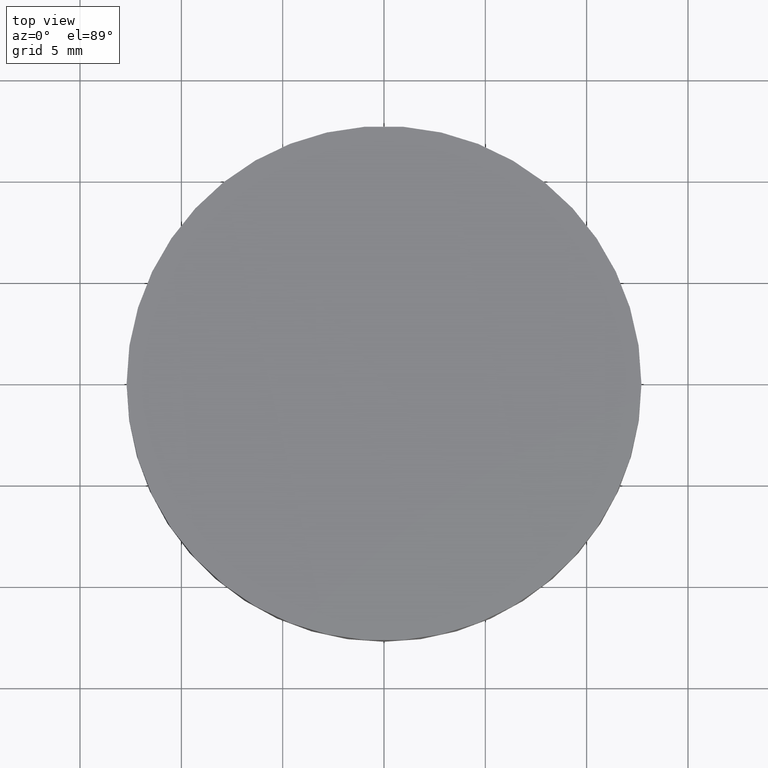
[diagram: clean part render]
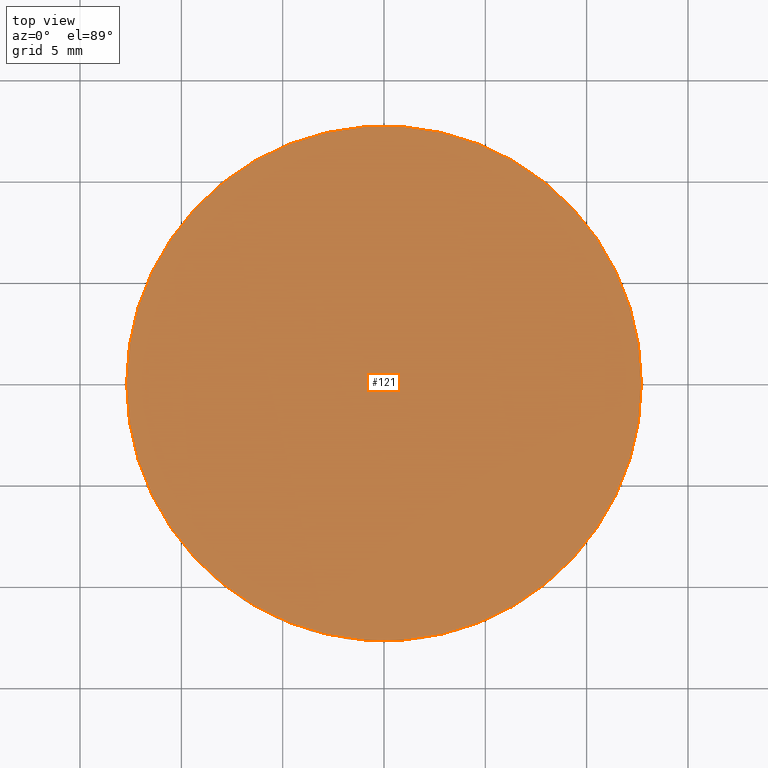
[diagram: same view with one face highlighted and labeled with its STEP entity id]
A machine part, top view. The second image highlights one B-rep face of the part: STEP entity #121.
In plain terms, the highlighted planar face has unit normal (0, 0, 1).
Its self-contained STEP definition (entity closure, byte-faithful):
#9 = DIRECTION ( 'NONE',  ( 1.000000000000000000, 0.0000000000000000000, -0.0000000000000000000 ) ) ;
#12 = VERTEX_POINT ( 'NONE', #80 ) ;
#16 = ORIENTED_EDGE ( 'NONE', *, *, #153, .F. ) ;
#21 = CIRCLE ( 'NONE', #112, 12.69999999999999900 ) ;
#48 = FACE_OUTER_BOUND ( 'NONE', #160, .T. ) ;
#60 = DIRECTION ( 'NONE',  ( -0.0000000000000000000, -0.0000000000000000000, -1.000000000000000000 ) ) ;
#62 = DIRECTION ( 'NONE',  ( 1.000000000000000000, 0.0000000000000000000, 0.0000000000000000000 ) ) ;
#67 = PLANE ( 'NONE',  #146 ) ;
#80 = CARTESIAN_POINT ( 'NONE',  ( 12.69999999999999900, 2.442490654175340100E-015, 3.500000000000000000 ) ) ;
#91 = EDGE_CURVE ( 'NONE', #216, #12, #21, .T. ) ;
#106 = CARTESIAN_POINT ( 'NONE',  ( 4.996003610813200500E-016, 2.442490654175340100E-015, 3.500000000000000000 ) ) ;
#107 = CARTESIAN_POINT ( 'NONE',  ( 0.0000000000000000000, 26.11199999999999800, 3.500000000000000000 ) ) ;
#108 = ORIENTED_EDGE ( 'NONE', *, *, #91, .F. ) ;
#112 = AXIS2_PLACEMENT_3D ( 'NONE', #152, #60, #193 ) ;
#113 = AXIS2_PLACEMENT_3D ( 'NONE', #106, #174, #62 ) ;
#121 = ADVANCED_FACE ( 'NONE', ( #48 ), #67, .T. ) ;
#146 = AXIS2_PLACEMENT_3D ( 'NONE', #107, #156, #9 ) ;
#152 = CARTESIAN_POINT ( 'NONE',  ( 4.996003610813200500E-016, 2.442490654175340100E-015, 3.500000000000000000 ) ) ;
#153 = EDGE_CURVE ( 'NONE', #12, #216, #204, .T. ) ;
#156 = DIRECTION ( 'NONE',  ( 0.0000000000000000000, 0.0000000000000000000, 1.000000000000000000 ) ) ;
#160 = EDGE_LOOP ( 'NONE', ( #16, #108 ) ) ;
#174 = DIRECTION ( 'NONE',  ( -0.0000000000000000000, -0.0000000000000000000, -1.000000000000000000 ) ) ;
#193 = DIRECTION ( 'NONE',  ( 1.000000000000000000, 0.0000000000000000000, 0.0000000000000000000 ) ) ;
#196 = CARTESIAN_POINT ( 'NONE',  ( -12.69999999999999900, 3.997792089092478900E-015, 3.500000000000000000 ) ) ;
#204 = CIRCLE ( 'NONE', #113, 12.69999999999999900 ) ;
#216 = VERTEX_POINT ( 'NONE', #196 ) ;